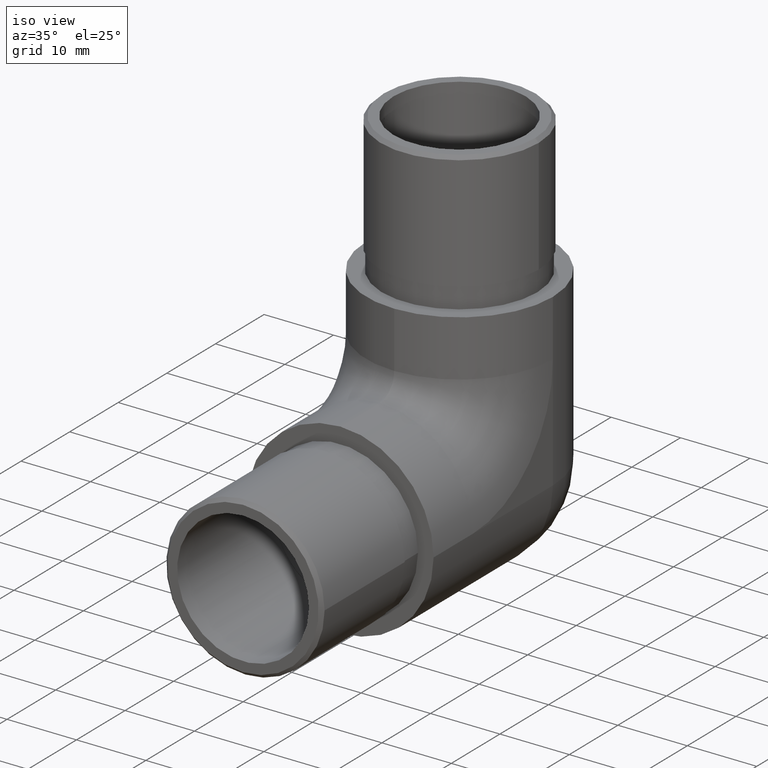
[diagram: clean part render]
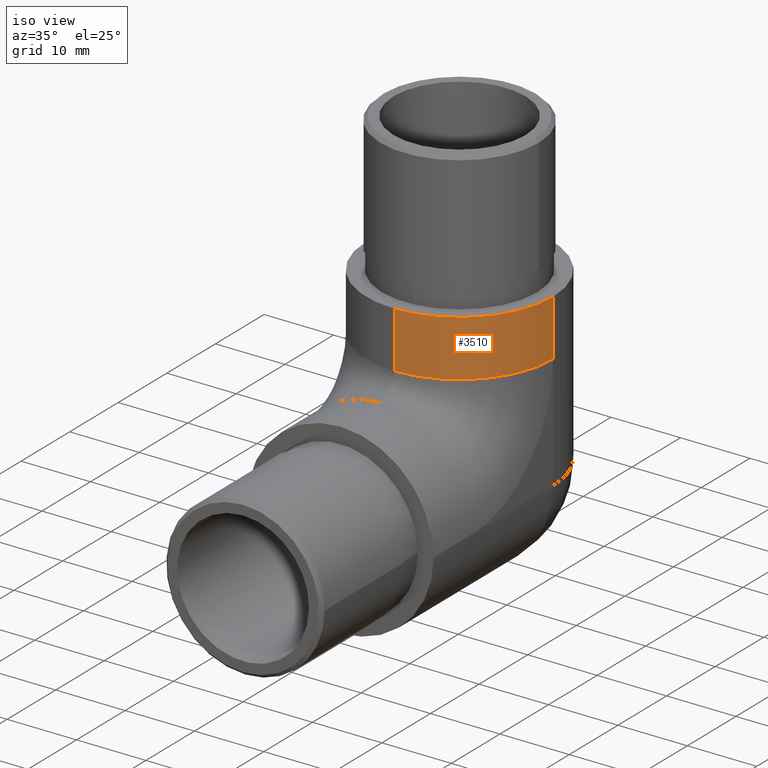
[diagram: same view with one face highlighted and labeled with its STEP entity id]
A machine part, iso view. The second image highlights one B-rep face of the part: STEP entity #3510.
In plain terms, the highlighted cylindrical surface (partial cylindrical patch) has radius 13.45 mm, axis along (0, -0, 1).
Its self-contained STEP definition (entity closure, byte-faithful):
#59 = DIRECTION ( 'NONE',  ( 6.448786156047610700E-017, -0.0000000000000000000, 1.000000000000000000 ) ) ;
#109 = VERTEX_POINT ( 'NONE', #12426 ) ;
#1180 = CARTESIAN_POINT ( 'NONE',  ( 13.44999999999999900, 24.54999999999999700, -13.45000000000000100 ) ) ;
#1211 = CIRCLE ( 'NONE', #10936, 13.44999999999999900 ) ;
#1265 = DIRECTION ( 'NONE',  ( 1.000000000000000000, 0.0000000000000000000, -1.289757231209522100E-016 ) ) ;
#2060 = EDGE_CURVE ( 'NONE', #9094, #11492, #1211, .T. ) ;
#2273 = EDGE_CURVE ( 'NONE', #9094, #8802, #7557, .T. ) ;
#3007 = CARTESIAN_POINT ( 'NONE',  ( 0.0000000000000000000, 24.54999999999999700, 16.44999999999999900 ) ) ;
#3510 = ADVANCED_FACE ( 'NONE', ( #8497 ), #9157, .T. ) ;
#3639 = AXIS2_PLACEMENT_3D ( 'NONE', #3007, #13680, #9518 ) ;
#3887 = VECTOR ( 'NONE', #59, 1000.000000000000000 ) ;
#5365 = CARTESIAN_POINT ( 'NONE',  ( -1.734723475976807100E-015, 11.09999999999999800, 24.55000000000000100 ) ) ;
#5941 = EDGE_LOOP ( 'NONE', ( #9610, #12320, #8964, #11238 ) ) ;
#6690 = CARTESIAN_POINT ( 'NONE',  ( 13.44999999999999900, 24.54999999999999700, 24.55000000000000100 ) ) ;
#7206 = DIRECTION ( 'NONE',  ( -1.000000000000000000, 0.0000000000000000000, 0.0000000000000000000 ) ) ;
#7557 = LINE ( 'NONE', #13324, #12211 ) ;
#8031 = CARTESIAN_POINT ( 'NONE',  ( 0.0000000000000000000, 11.09999999999999800, 16.44999999999999900 ) ) ;
#8404 = LINE ( 'NONE', #1180, #3887 ) ;
#8468 = DIRECTION ( 'NONE',  ( -0.0000000000000000000, -0.0000000000000000000, 1.000000000000000000 ) ) ;
#8497 = FACE_OUTER_BOUND ( 'NONE', #5941, .T. ) ;
#8628 = CARTESIAN_POINT ( 'NONE',  ( -1.734723475976807100E-015, 24.54999999999999700, -13.44999999999999900 ) ) ;
#8735 = DIRECTION ( 'NONE',  ( -6.448786156047610700E-017, 0.0000000000000000000, -1.000000000000000000 ) ) ;
#8802 = VERTEX_POINT ( 'NONE', #8031 ) ;
#8964 = ORIENTED_EDGE ( 'NONE', *, *, #11203, .F. ) ;
#9094 = VERTEX_POINT ( 'NONE', #5365 ) ;
#9157 = CYLINDRICAL_SURFACE ( 'NONE', #12338, 13.44999999999999900 ) ;
#9518 = DIRECTION ( 'NONE',  ( -1.000000000000000000, 0.0000000000000000000, 0.0000000000000000000 ) ) ;
#9587 = CIRCLE ( 'NONE', #3639, 13.44999999999999900 ) ;
#9610 = ORIENTED_EDGE ( 'NONE', *, *, #2060, .F. ) ;
#10936 = AXIS2_PLACEMENT_3D ( 'NONE', #13692, #8468, #7206 ) ;
#11203 = EDGE_CURVE ( 'NONE', #109, #8802, #9587, .T. ) ;
#11238 = ORIENTED_EDGE ( 'NONE', *, *, #13521, .T. ) ;
#11492 = VERTEX_POINT ( 'NONE', #6690 ) ;
#12211 = VECTOR ( 'NONE', #8735, 1000.000000000000000 ) ;
#12320 = ORIENTED_EDGE ( 'NONE', *, *, #2273, .T. ) ;
#12338 = AXIS2_PLACEMENT_3D ( 'NONE', #8628, #12878, #1265 ) ;
#12426 = CARTESIAN_POINT ( 'NONE',  ( 13.44999999999999900, 24.54999999999999700, 16.44999999999999900 ) ) ;
#12878 = DIRECTION ( 'NONE',  ( 6.448786156047610700E-017, -0.0000000000000000000, 1.000000000000000000 ) ) ;
#13324 = CARTESIAN_POINT ( 'NONE',  ( 1.734723475976807100E-015, 11.09999999999999800, 24.55000000000000100 ) ) ;
#13521 = EDGE_CURVE ( 'NONE', #109, #11492, #8404, .T. ) ;
#13680 = DIRECTION ( 'NONE',  ( 0.0000000000000000000, 0.0000000000000000000, -1.000000000000000000 ) ) ;
#13692 = CARTESIAN_POINT ( 'NONE',  ( 7.158152633212852900E-016, 24.54999999999999700, 24.55000000000000400 ) ) ;